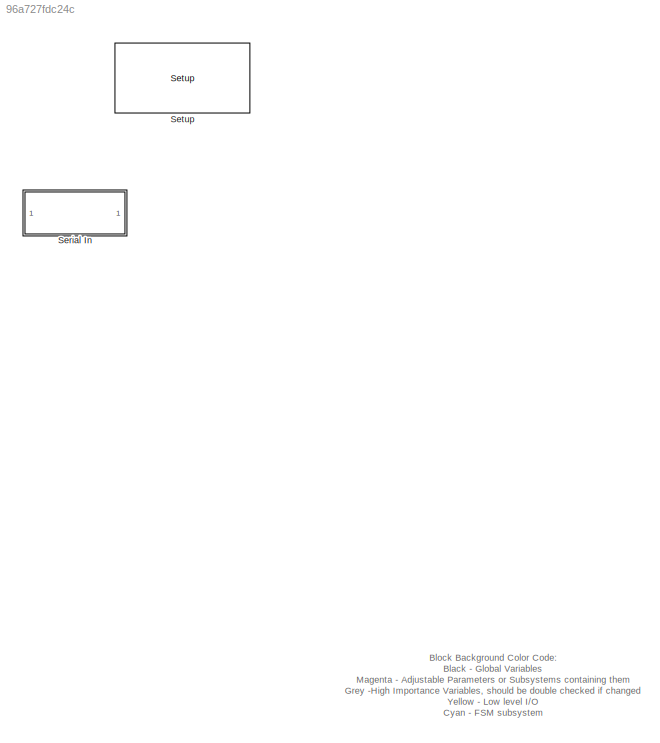
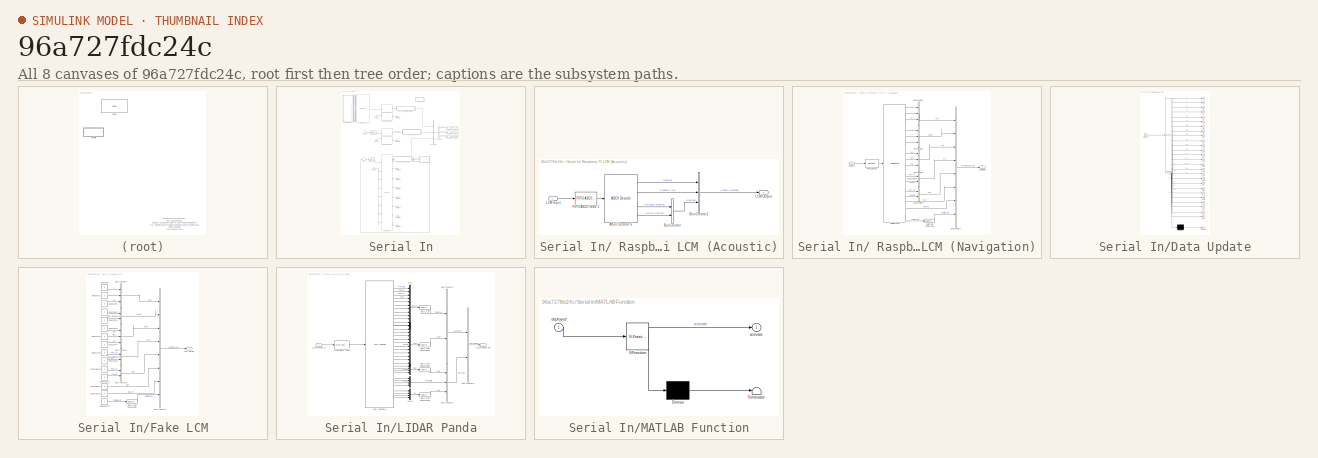
[diagram: thumbnail index - all 8 canvases of the model, root first then tree order]
MODEL slx_96a727fdc24c
KIND model
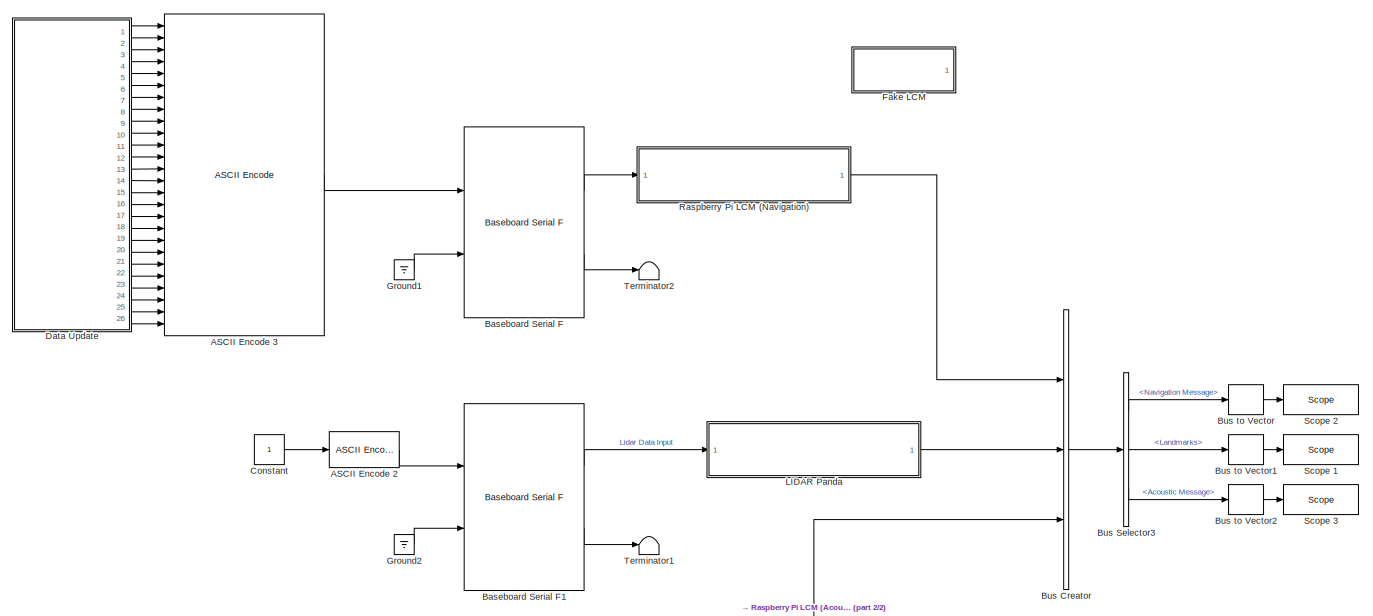
[diagram: Serial In - part 1/2, full width, top band]
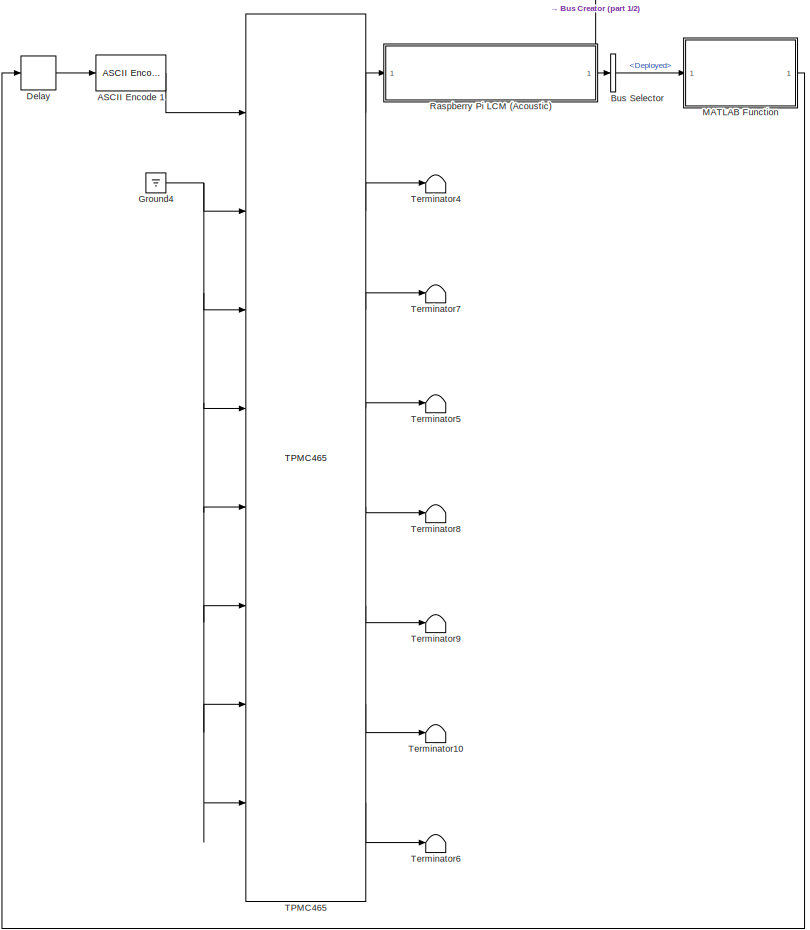
[diagram: Serial In - part 2/2, bottom center region]
BLOCK [SubSystem] Serial In
  Ports = []
  RequestExecContextInheritance = off
BLOCK [SubSystem] Serial In/ Raspberry Pi LCM (Acoustic)
  Ports = [1, 1]
  RequestExecContextInheritance = off
BLOCK [Reference] Serial In/ Raspberry Pi LCM (Acoustic)/ASCII Decode 6  REF=xpcseriallib/ASCII Decode 
  Ports = [1, 4]
  SourceBlock = xpcseriallib/ASCII Decode
  SourceType = ASCII Decode
  format = Deploy:%1u, Elapsed:%g, Bearing1:%g Bearing2:%g \r\n
  nvars = 4
  vartypes = {}
BLOCK [BusCreator] Serial In/ Raspberry Pi LCM (Acoustic)/Bus Creator
  DisplayOption = bar
  Inputs = 2
  Ports = [2, 1]
BLOCK [BusCreator] Serial In/ Raspberry Pi LCM (Acoustic)/Bus Creator1
  DisplayOption = bar
  Inputs = 3
  Ports = [3, 1]
BLOCK [Reference] Serial In/ Raspberry Pi LCM (Acoustic)/FIFO ASCII read 1  REF=xpcseriallib/FIFO ASCII read 
  Ports = [1, 1]
  SourceBlock = xpcseriallib/FIFO ASCII read
  SourceType = Asynchronous FIFO Block: reader
  enable = off
  header = {'Deploy:'}
  hold = Zero output if no new data
  maxsize = 1024
  outputtype = 8 bit uint null terminated
  sampletime = -1
  term = [13 10]
BLOCK [Inport] Serial In/ Raspberry Pi LCM (Acoustic)/LCM Input
  IconDisplay = Port number
BLOCK [Outport] Serial In/ Raspberry Pi LCM (Acoustic)/LCM Output
  IconDisplay = Port number
BLOCK [SubSystem] Serial In/ Raspberry Pi LCM (Navigation)
  Ports = [1, 1]
  RequestExecContextInheritance = off
BLOCK [Reference] Serial In/ Raspberry Pi LCM (Navigation)/ASCII Decode 6  REF=xpcseriallib/ASCII Decode 
  Ports = [1, 16]
  SourceBlock = xpcseriallib/ASCII Decode
  SourceType = ASCII Decode
  format = P1:%f P2:%f P3:%f V1:%f V2:%f V3:%f E1:%f E2:%f E3:%f Pt1:%f Pt2:%f St1:%f St2:%f Start:%f Elapsed:%f RC:%d \r\n
  nvars = 16
  vartypes = {}
BLOCK [BusCreator] Serial In/ Raspberry Pi LCM (Navigation)/Bus Creator1
  DisplayOption = bar
  Inputs = 3
  Ports = [3, 1]
BLOCK [BusCreator] Serial In/ Raspberry Pi LCM (Navigation)/Bus Creator2
  DisplayOption = bar
  Inputs = 3
  Ports = [3, 1]
BLOCK [BusCreator] Serial In/ Raspberry Pi LCM (Navigation)/Bus Creator3
  DisplayOption = bar
  Inputs = 3
  Ports = [3, 1]
BLOCK [BusCreator] Serial In/ Raspberry Pi LCM (Navigation)/Bus Creator4
  DisplayOption = bar
  Inputs = 8
  Ports = [8, 1]
BLOCK [BusCreator] Serial In/ Raspberry Pi LCM (Navigation)/Bus Creator5
  DisplayOption = bar
  Inputs = 2
  Ports = [2, 1]
BLOCK [BusCreator] Serial In/ Raspberry Pi LCM (Navigation)/Bus Creator6
  DisplayOption = bar
  Inputs = 2
  Ports = [2, 1]
BLOCK [DataTypeConversion] Serial In/ Raspberry Pi LCM (Navigation)/Data Type Conversion
  OutDataTypeStr = double
  RndMeth = Floor
  SaturateOnIntegerOverflow = off
BLOCK [Reference] Serial In/ Raspberry Pi LCM (Navigation)/FIFO ASCII read 1  REF=xpcseriallib/FIFO ASCII read 
  Ports = [1, 1]
  SourceBlock = xpcseriallib/FIFO ASCII read
  SourceType = Asynchronous FIFO Block: reader
  enable = off
  header = {'P1:'}
  hold = Zero output if no new data
  maxsize = 1024
  outputtype = 8 bit uint null terminated
  sampletime = -1
  term = [13 10]
BLOCK [Inport] Serial In/ Raspberry Pi LCM (Navigation)/LCM Input
  IconDisplay = Port number
BLOCK [Outport] Serial In/ Raspberry Pi LCM (Navigation)/LCM Output
  IconDisplay = Port number
BLOCK [Reference] Serial In/ASCII Encode 1  REF=xpcseriallib/ASCII Encode 
  Ports = [1, 1]
  SourceBlock = xpcseriallib/ASCII Encode
  SourceType = ASCII Encode
  format = {"Activate":%d} \r\n
  maxlength = 20
  nvars = 1
  vartypes = { 'double' }
BLOCK [Reference] Serial In/ASCII Encode 2  REF=xpcseriallib/ASCII Encode 
  Ports = [1, 1]
  SourceBlock = xpcseriallib/ASCII Encode
  SourceType = ASCII Encode
  format = SGTask:%d \r\n
  maxlength = 128
  nvars = 1
  vartypes = { 'double' }
BLOCK [Reference] Serial In/ASCII Encode 3  REF=xpcseriallib/ASCII Encode 
  Ports = [26, 1]
  SourceBlock = xpcseriallib/ASCII Encode
  SourceType = ASCII Encode
  format = {"Valid":%d,"Mode":%d,"A":%f,"B":%f,"C":%f,"D":%f,"E":%f,"F":%f,"G":%f,"H":%f,"I":%f,"J":%f,"K":%f,"L":%f,"M":%f,"N":%f,"O":%f,"P":%f,"Q":%f,"R":%f,"S":%f,"T":%f,"U":%f,"V":%f,"W":%f,"X":%f} \r\n
  maxlength = 450
  nvars = 26
  vartypes = { 'double' }
BLOCK [Reference] Serial In/Baseboard Serial F  REF=xpcseriallib/Mainboard/Baseboard
Serial F
  Ports = [2, 2]
  SourceBlock = xpcseriallib/Mainboard/Baseboard\nSerial F
  SourceType = Baseboard RS232 Send Receive
  automode1 = on
  automode2 = on
  baud1 = 115200
  baud2 = 115200
  config = Com1/Com3
  fifomode1 = 64 deep
  fifomode2 = 64 deep
  group = Basic Setup
  irqnum = 4
  ndata1 = 7
  ndata2 = 7
  nstop1 = 1
  nstop2 = 1
  parity1 = Even
  parity2 = Even
  port = 1
  rcvfifosize1 = 1024
  rcvfifosize2 = 1024
  rlevel1 = quarter full
  rlevel2 = 1
  saddr1 = 0x3f8
  saddr2 = 0x3e8
  xmtdatatype1 = 8 bit uint null terminated
  xmtdatatype2 = 8 bit uint null terminated
  xmtfifosize1 = 1024
  xmtfifosize2 = 1024
BLOCK [Reference] Serial In/Baseboard Serial F1  REF=xpcseriallib/Mainboard/Baseboard
Serial F
  Ports = [2, 2]
  SourceBlock = xpcseriallib/Mainboard/Baseboard\nSerial F
  SourceType = Baseboard RS232 Send Receive
  automode1 = on
  automode2 = on
  baud1 = 115200
  baud2 = 115200
  config = Com2/Com4
  fifomode1 = 64 deep
  fifomode2 = 64 deep
  group = Basic Setup
  irqnum = 4
  ndata1 = 7
  ndata2 = 7
  nstop1 = 1
  nstop2 = 1
  parity1 = Even
  parity2 = Even
  port = 2
  rcvfifosize1 = 1024
  rcvfifosize2 = 1024
  rlevel1 = quarter full
  rlevel2 = quarter full
  saddr1 = 0x3f8
  saddr2 = 0x3e8
  xmtdatatype1 = 8 bit uint null terminated
  xmtdatatype2 = 8 bit uint null terminated
  xmtfifosize1 = 1024
  xmtfifosize2 = 1024
BLOCK [BusCreator] Serial In/Bus Creator
  DisplayOption = bar
  Inputs = 3
  Ports = [3, 1]
BLOCK [BusSelector] Serial In/Bus Selector
  OutputSignals = Deployed
  Ports = [1, 1]
BLOCK [BusSelector] Serial In/Bus Selector3
  OutputSignals = Navigation Message,Lidar Data Input.Landmarks,Acoustic Message
  Ports = [1, 3]
BLOCK [BusToVector] Serial In/Bus to Vector
BLOCK [BusToVector] Serial In/Bus to Vector1
BLOCK [BusToVector] Serial In/Bus to Vector2
BLOCK [Constant] Serial In/Constant
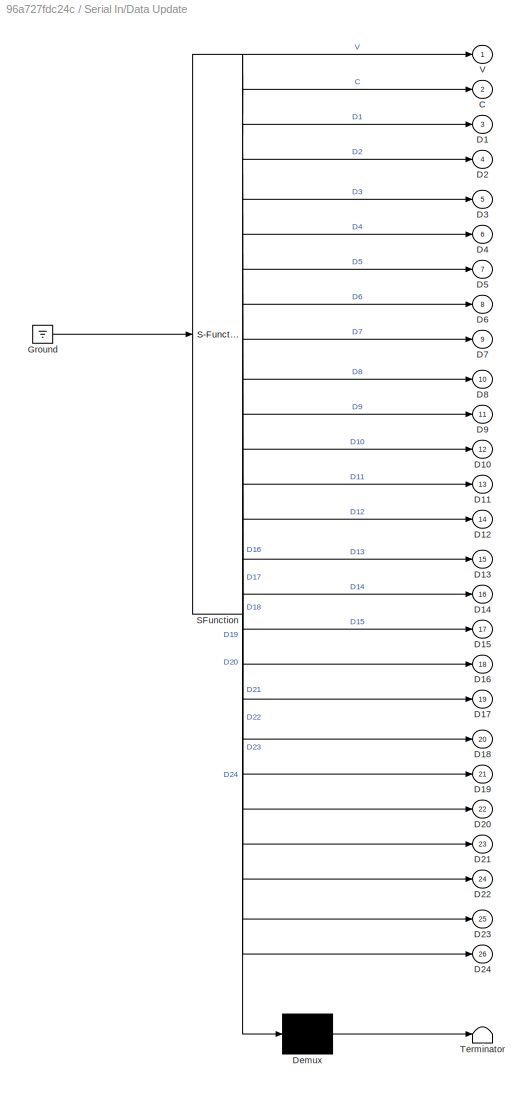
BLOCK [SubSystem] Serial In/Data Update
  ErrorFcn = Stateflow.Translate.translate
  PermitHierarchicalResolution = ExplicitOnly
  Ports = [0, 26]
  RequestExecContextInheritance = off
  SFBlockType = MATLAB Function
  TreatAsAtomicUnit = on
BLOCK [Demux] Serial In/Data Update/ Demux 
  Outputs = 1
  Ports = [1, 1]
BLOCK [Ground] Serial In/Data Update/ Ground 
BLOCK [S-Function] Serial In/Data Update/ SFunction 
  EnableBusSupport = on
  FunctionName = sf_sfun
  PortCounts = [1 27]
  Ports = [1, 27]
  Tag = Stateflow S-Function RobotX_AcousticCommOnlyAllThree 3
BLOCK [Terminator] Serial In/Data Update/ Terminator 
BLOCK [Outport] Serial In/Data Update/C
  IconDisplay = Port number
  Port = 2
BLOCK [Outport] Serial In/Data Update/D1
  IconDisplay = Port number
  Port = 3
BLOCK [Outport] Serial In/Data Update/D10
  IconDisplay = Port number
  Port = 12
BLOCK [Outport] Serial In/Data Update/D11
  IconDisplay = Port number
  Port = 13
BLOCK [Outport] Serial In/Data Update/D12
  IconDisplay = Port number
  Port = 14
BLOCK [Outport] Serial In/Data Update/D13
  IconDisplay = Port number
  Port = 15
BLOCK [Outport] Serial In/Data Update/D14
  IconDisplay = Port number
  Port = 16
BLOCK [Outport] Serial In/Data Update/D15
  IconDisplay = Port number
  Port = 17
BLOCK [Outport] Serial In/Data Update/D16
  IconDisplay = Port number
  Port = 18
BLOCK [Outport] Serial In/Data Update/D17
  IconDisplay = Port number
  Port = 19
BLOCK [Outport] Serial In/Data Update/D18
  IconDisplay = Port number
  Port = 20
BLOCK [Outport] Serial In/Data Update/D19
  IconDisplay = Port number
  Port = 21
BLOCK [Outport] Serial In/Data Update/D2
  IconDisplay = Port number
  Port = 4
BLOCK [Outport] Serial In/Data Update/D20
  IconDisplay = Port number
  Port = 22
BLOCK [Outport] Serial In/Data Update/D21
  IconDisplay = Port number
  Port = 23
BLOCK [Outport] Serial In/Data Update/D22
  IconDisplay = Port number
  Port = 24
BLOCK [Outport] Serial In/Data Update/D23
  IconDisplay = Port number
  Port = 25
BLOCK [Outport] Serial In/Data Update/D24
  IconDisplay = Port number
  Port = 26
BLOCK [Outport] Serial In/Data Update/D3
  IconDisplay = Port number
  Port = 5
BLOCK [Outport] Serial In/Data Update/D4
  IconDisplay = Port number
  Port = 6
BLOCK [Outport] Serial In/Data Update/D5
  IconDisplay = Port number
  Port = 7
BLOCK [Outport] Serial In/Data Update/D6
  IconDisplay = Port number
  Port = 8
BLOCK [Outport] Serial In/Data Update/D7
  IconDisplay = Port number
  Port = 9
BLOCK [Outport] Serial In/Data Update/D8
  IconDisplay = Port number
  Port = 10
BLOCK [Outport] Serial In/Data Update/D9
  IconDisplay = Port number
  Port = 11
BLOCK [Outport] Serial In/Data Update/V
  IconDisplay = Port number
BLOCK [Delay] Serial In/Delay
  DelayLength = 1
  InitialCondition = 0
  InputPortMap = u0
  Ports = [1, 1]
BLOCK [SubSystem] Serial In/Fake LCM
  Commented = on
  Ports = [0, 1]
  RequestExecContextInheritance = off
BLOCK [BusCreator] Serial In/Fake LCM/Bus Creator1
  DisplayOption = bar
  Inputs = 3
  Ports = [3, 1]
BLOCK [BusCreator] Serial In/Fake LCM/Bus Creator2
  DisplayOption = bar
  Inputs = 2
  Ports = [2, 1]
BLOCK [BusCreator] Serial In/Fake LCM/Bus Creator3
  DisplayOption = bar
  Inputs = 3
  Ports = [3, 1]
BLOCK [BusCreator] Serial In/Fake LCM/Bus Creator4
  DisplayOption = bar
  Inputs = 8
  Ports = [8, 1]
BLOCK [BusCreator] Serial In/Fake LCM/Bus Creator5
  DisplayOption = bar
  Inputs = 2
  Ports = [2, 1]
BLOCK [BusCreator] Serial In/Fake LCM/Bus Creator6
  DisplayOption = bar
  Inputs = 2
  Ports = [2, 1]
BLOCK [Constant] Serial In/Fake LCM/Constant
  Value = 0
BLOCK [Constant] Serial In/Fake LCM/Constant1
  Value = 0
BLOCK [Constant] Serial In/Fake LCM/Constant10
  Value = 0
BLOCK [Constant] Serial In/Fake LCM/Constant11
  Value = 0
BLOCK [Constant] Serial In/Fake LCM/Constant12
  Value = 0
BLOCK [Constant] Serial In/Fake LCM/Constant13
  Value = 0
BLOCK [Constant] Serial In/Fake LCM/Constant14
  Value = 3
BLOCK [Constant] Serial In/Fake LCM/Constant2
  Value = 0
BLOCK [Constant] Serial In/Fake LCM/Constant3
  Value = 0
BLOCK [Constant] Serial In/Fake LCM/Constant4
  Value = 0
BLOCK [Constant] Serial In/Fake LCM/Constant5
  Value = 0
BLOCK [Constant] Serial In/Fake LCM/Constant6
  Value = 0
BLOCK [Constant] Serial In/Fake LCM/Constant7
  Value = 0
BLOCK [Constant] Serial In/Fake LCM/Constant8
  Value = 0
BLOCK [Constant] Serial In/Fake LCM/Constant9
  Value = 0
BLOCK [DataTypeConversion] Serial In/Fake LCM/Data Type Conversion
  OutDataTypeStr = double
  RndMeth = Floor
  SaturateOnIntegerOverflow = off
BLOCK [Outport] Serial In/Fake LCM/LCM Output
  IconDisplay = Port number
BLOCK [Ground] Serial In/Ground1
BLOCK [Ground] Serial In/Ground2
BLOCK [Ground] Serial In/Ground4
BLOCK [SubSystem] Serial In/LIDAR Panda
  Ports = [1, 1]
  RequestExecContextInheritance = off
BLOCK [Reference] Serial In/LIDAR Panda/ASCII Decode 2  REF=xpcseriallib/ASCII Decode 
  Ports = [1, 36]
  SourceBlock = xpcseriallib/ASCII Decode
  SourceType = ASCII Decode
  format = A:%d B:%d C:%d E:%d F:%d G:%d H:%d I:%d J:%d K:%d L:%d M:%d N:%d O:%d P:%d Q:%d R:%d S:%d T:%d U:%d V:%d W:%d X:%d C1:%d C2:%d C3:%d C4:%d P1:%f P2:%f P3:%f P4:%f I1:%d I2:%d I3:%d I4:%d \r\n
  nvars = 36
  vartypes = {}
BLOCK [BusCreator] Serial In/LIDAR Panda/Bus Creator1
  DisplayOption = bar
  Inputs = 2
  Ports = [2, 1]
BLOCK [BusCreator] Serial In/LIDAR Panda/Bus Creator2
  DisplayOption = bar
  Inputs = 3
  Ports = [3, 1]
BLOCK [BusCreator] Serial In/LIDAR Panda/Bus Creator3
  DisplayOption = bar
  Inputs = 2
  Ports = [2, 1]
BLOCK [DataTypeConversion] Serial In/LIDAR Panda/Data Type Conversion
  OutDataTypeStr = double
  RndMeth = Floor
  SaturateOnIntegerOverflow = off
BLOCK [DataTypeConversion] Serial In/LIDAR Panda/Data Type Conversion1
  OutDataTypeStr = double
  RndMeth = Floor
  SaturateOnIntegerOverflow = off
BLOCK [DataTypeConversion] Serial In/LIDAR Panda/Data Type Conversion2
  OutDataTypeStr = double
  RndMeth = Floor
  SaturateOnIntegerOverflow = off
BLOCK [DataTypeConversion] Serial In/LIDAR Panda/Data Type Conversion3
  OutDataTypeStr = double
  RndMeth = Floor
  SaturateOnIntegerOverflow = off
BLOCK [Reference] Serial In/LIDAR Panda/FIFO ASCII read   REF=xpcseriallib/FIFO ASCII read 
  Ports = [1, 1]
  SourceBlock = xpcseriallib/FIFO ASCII read
  SourceType = Asynchronous FIFO Block: reader
  enable = off
  header = {'A:'}
  hold = Zero output if no new data
  maxsize = 1024
  outputtype = 8 bit uint null terminated
  sampletime = -1
  term = [13 10]
BLOCK [Inport] Serial In/LIDAR Panda/LIDAR Panda In
  IconDisplay = Port number
BLOCK [Outport] Serial In/LIDAR Panda/LIDAR Panda Out
  IconDisplay = Port number
BLOCK [Mux] Serial In/LIDAR Panda/Mux
  DisplayOption = bar
  Inputs = 12
  Ports = [12, 1]
BLOCK [Mux] Serial In/LIDAR Panda/Mux1
  DisplayOption = bar
  Ports = [4, 1]
BLOCK [Mux] Serial In/LIDAR Panda/Mux2
  DisplayOption = bar
  Inputs = 12
  Ports = [12, 1]
BLOCK [Mux] Serial In/LIDAR Panda/Mux3
  DisplayOption = bar
  Ports = [4, 1]
BLOCK [Mux] Serial In/LIDAR Panda/Mux4
  DisplayOption = bar
  Ports = [4, 1]
BLOCK [SubSystem] Serial In/MATLAB Function
  ErrorFcn = Stateflow.Translate.translate
  PermitHierarchicalResolution = ExplicitOnly
  Ports = [1, 1]
  RequestExecContextInheritance = off
  SFBlockType = MATLAB Function
  TreatAsAtomicUnit = on
BLOCK [Demux] Serial In/MATLAB Function/ Demux 
  Outputs = 1
  Ports = [1, 1]
BLOCK [S-Function] Serial In/MATLAB Function/ SFunction 
  EnableBusSupport = on
  FunctionName = sf_sfun
  PortCounts = [1 2]
  Ports = [1, 2]
  Tag = Stateflow S-Function RobotX_AcousticCommOnlyAllThree 2
BLOCK [Terminator] Serial In/MATLAB Function/ Terminator 
BLOCK [Outport] Serial In/MATLAB Function/activate
  IconDisplay = Port number
BLOCK [Inport] Serial In/MATLAB Function/deployed
  IconDisplay = Port number
BLOCK [Reference] Serial In/Scope 1  REF=slrtlib/Displays and
Logging/Scope 
  Ports = [1]
  SourceBlock = slrtlib/Displays and\nLogging/Scope
  SourceType = xpcscopeblock
  autorestart = on
  autostart = on
  dynamicfilemode = on
  filename = LM1_<%%%>2.dat
  formatstr = '%15.6f'
  grid = on
  interleave = 1
  maxwritefilesize = 512*1024^2
  mode = Lazy
  noprepostsamples = 0
  nosamples = 28800
  scopeno = 4
  scopetype = File
  triggerlevel = 0.0
  triggermode = FreeRun
  triggersample = 0
  triggerscope = 1
  triggersignal = 1
  triggerslope = Either
  trigsignalfromport = off
  viewmode = Graphical redraw
  writesize = 512
  ylimits = [0,0]
BLOCK [Reference] Serial In/Scope 2  REF=slrtlib/Displays and
Logging/Scope 
  Ports = [1]
  SourceBlock = slrtlib/Displays and\nLogging/Scope
  SourceType = xpcscopeblock
  autorestart = on
  autostart = on
  dynamicfilemode = on
  filename = NAV1_<%%%>2.dat
  formatstr = '%15.6f'
  grid = on
  interleave = 1
  maxwritefilesize = 512*1024^2
  mode = Lazy
  noprepostsamples = 0
  nosamples = 28800
  scopeno = 1
  scopetype = File
  triggerlevel = 0.0
  triggermode = FreeRun
  triggersample = 0
  triggerscope = 1
  triggersignal = 1
  triggerslope = Either
  trigsignalfromport = off
  viewmode = Graphical redraw
  writesize = 512
  ylimits = [0,0]
BLOCK [Reference] Serial In/Scope 3  REF=slrtlib/Displays and
Logging/Scope 
  Ports = [1]
  SourceBlock = slrtlib/Displays and\nLogging/Scope
  SourceType = xpcscopeblock
  autorestart = on
  autostart = on
  dynamicfilemode = on
  filename = ACO1_<%%%>2.dat
  formatstr = '%15.6f'
  grid = on
  interleave = 1
  maxwritefilesize = 512*1024^2
  mode = Lazy
  noprepostsamples = 0
  nosamples = 28800
  scopeno = 3
  scopetype = File
  triggerlevel = 0.0
  triggermode = FreeRun
  triggersample = 0
  triggerscope = 1
  triggersignal = 1
  triggerslope = Either
  trigsignalfromport = off
  viewmode = Graphical redraw
  writesize = 512
  ylimits = [0,0]
BLOCK [Reference] Serial In/TPMC465  REF=speedgoatlib/IO504/TPMC465  (lib defined in mdl_2b10c7445f81, mdl_649b3eec89a6, +4 more)
  Ports = [8, 8]
  SourceBlock = speedgoatlib/IO504/TPMC465
  SourceType = sendreceive_IO504
  baud1 = 115200
  baud2 = 115200
  baud3 = 115200
  baud4 = 115200
  baud5 = 115200
  baud6 = 115200
  baud7 = 115200
  baud8 = 115200
  bauddivisor1 = 1
  bauddivisor2 = 1
  bauddivisor3 = 1
  bauddivisor4 = 1
  bauddivisor5 = 1
  bauddivisor6 = 1
  bauddivisor7 = 1
  bauddivisor8 = 1
  group = Basic Setup
  hwmode1 = none
  hwmode2 = none
  hwmode3 = none
  hwmode4 = none
  hwmode5 = none
  hwmode6 = none
  hwmode7 = none
  hwmode8 = none
  irqnum = 9
  ndata1 = 7
  ndata2 = 8
  ndata3 = 8
  ndata4 = 8
  ndata5 = 8
  ndata6 = 8
  ndata7 = 8
  ndata8 = 8
  nstop1 = 1
  nstop2 = 1
  nstop3 = 1
  nstop4 = 1
  nstop5 = 1
  nstop6 = 1
  nstop7 = 1
  nstop8 = 1
  parity1 = Even
  parity2 = None
  parity3 = None
  parity4 = None
  parity5 = None
  parity6 = None
  parity7 = None
  parity8 = None
  port = 2
  prescale1 = off
  prescale2 = off
  prescale3 = off
  prescale4 = off
  prescale5 = off
  prescale6 = off
  prescale7 = off
  prescale8 = off
  rcvfifosize1 = 1024
  rcvfifosize2 = 1024
  rcvfifosize3 = 1024
  rcvfifosize4 = 1024
  rcvfifosize5 = 1024
  rcvfifosize6 = 1024
  rcvfifosize7 = 1024
  rcvfifosize8 = 1024
  rlevel1 = half full (32)
  rlevel2 = half full (32)
  rlevel3 = half full (32)
  rlevel4 = half full (32)
  rlevel5 = 1
  rlevel6 = 1
  rlevel7 = 1
  rlevel8 = 1
  rs485auto1 = off
  rs485auto2 = off
  rs485auto3 = off
  rs485auto4 = off
  rs485auto5 = off
  rs485auto6 = off
  rs485auto7 = off
  rs485auto8 = off
  rs485delay1 = 0
  rs485delay2 = 0
  rs485delay3 = 0
  rs485delay4 = 0
  rs485delay5 = 0
  rs485delay6 = 0
  rs485delay7 = 0
  rs485delay8 = 0
  sampling1 = 16x (standard)
  sampling2 = 16x (standard)
  sampling3 = 16x (standard)
  sampling4 = 16x (standard)
  sampling5 = 16x (standard)
  sampling6 = 16x (standard)
  sampling7 = 16x (standard)
  sampling8 = 16x (standard)
  slot = -1
  standard1 = on
  standard2 = on
  standard3 = on
  standard4 = on
  standard5 = on
  standard6 = on
  standard7 = on
  standard8 = on
  swmode1 = none
  swmode2 = none
  swmode3 = none
  swmode4 = none
  swmode5 = none
  swmode6 = none
  swmode7 = none
  swmode8 = none
  transceiver1 = RS232 (max 921.6kb/s)
  transceiver2 = RS232 (max 921.6kb/s)
  transceiver3 = RS232 (max 921.6kb/s)
  transceiver4 = RS232 (max 921.6kb/s)
  transceiver5 = RS232 (max 921.6kb/s)
  transceiver6 = RS232 (max 921.6kb/s)
  transceiver7 = RS232 (max 921.6kb/s)
  transceiver8 = RS232 (max 921.6kb/s)
  xmtdatatype1 = 8 bit uint null terminated
  xmtdatatype2 = 8 bit uint null terminated
  xmtdatatype3 = 8 bit uint null terminated
  xmtdatatype4 = 8 bit uint null terminated
  xmtdatatype5 = 8 bit uint null terminated
  xmtdatatype6 = 8 bit uint null terminated
  xmtdatatype7 = 8 bit uint null terminated
  xmtdatatype8 = 8 bit uint null terminated
  xmtfifosize1 = 1024
  xmtfifosize2 = 1024
  xmtfifosize3 = 1024
  xmtfifosize4 = 1024
  xmtfifosize5 = 1024
  xmtfifosize6 = 1024
  xmtfifosize7 = 1024
  xmtfifosize8 = 1024
  xoffchar1 = 19
  xoffchar2 = 19
  xoffchar3 = 19
  xoffchar4 = 19
  xoffchar5 = 19
  xoffchar6 = 19
  xoffchar7 = 19
  xoffchar8 = 19
  xonchar1 = 17
  xonchar2 = 17
  xonchar3 = 17
  xonchar4 = 17
  xonchar5 = 17
  xonchar6 = 17
  xonchar7 = 17
  xonchar8 = 17
BLOCK [Terminator] Serial In/Terminator1
BLOCK [Terminator] Serial In/Terminator10
BLOCK [Terminator] Serial In/Terminator2
BLOCK [Terminator] Serial In/Terminator4
BLOCK [Terminator] Serial In/Terminator5
BLOCK [Terminator] Serial In/Terminator6
BLOCK [Terminator] Serial In/Terminator7
BLOCK [Terminator] Serial In/Terminator8
BLOCK [Terminator] Serial In/Terminator9
BLOCK [Reference] Setup  REF=speedgoatlib_IO102/Setup
  Ports = []
  SourceBlock = speedgoatlib_IO102/Setup
  SourceType = setup_IO102
  adChannel = 16
  adChannelMode = Multiple-channel (enter number of channels below)
  adCoupling = Differential
  cal = off
  daChannel = [1,2,3,4]
  daInitValue = [0]
  daReset = [1]
  diChannel = [1,2,3,4,5,6,7,8]
  doChannel = [1,2,3,4,5,6,7,8]
  doInitValue = [0]
  doReset = [1]
  group = Digital output setup
  id = 1
  pciSlot = -1
  range = +-5V
ANNOTATION (root): Block Background Color Code: Black - Global Variables Magenta - Adjustable Parameters or Subsystems containing them Grey -High Importance Variables, should be double checked if changed Yellow - Low level I/O Cyan - FSM subsystem Light Blue - Conditional Selector Block Dark Green - Task Enablers Orange - Output Selectors Green - Signal Bussing Blocks Red - Logic blocks. Determine signals for output...<+28ch>
LINE Serial In/ Raspberry Pi LCM (Acoustic)/ASCII Decode 6:1 -> Serial In/ Raspberry Pi LCM (Acoustic)/Bus Creator1:1
LINE Serial In/ Raspberry Pi LCM (Acoustic)/ASCII Decode 6:2 -> Serial In/ Raspberry Pi LCM (Acoustic)/Bus Creator1:2
LINE Serial In/ Raspberry Pi LCM (Acoustic)/ASCII Decode 6:3 -> Serial In/ Raspberry Pi LCM (Acoustic)/Bus Creator:1
LINE Serial In/ Raspberry Pi LCM (Acoustic)/ASCII Decode 6:4 -> Serial In/ Raspberry Pi LCM (Acoustic)/Bus Creator:2
LINE Serial In/ Raspberry Pi LCM (Acoustic)/Bus Creator1:1 -> Serial In/ Raspberry Pi LCM (Acoustic)/LCM Output:1
LINE Serial In/ Raspberry Pi LCM (Acoustic)/Bus Creator:1 -> Serial In/ Raspberry Pi LCM (Acoustic)/Bus Creator1:3
LINE Serial In/ Raspberry Pi LCM (Acoustic)/FIFO ASCII read 1:1 -> Serial In/ Raspberry Pi LCM (Acoustic)/ASCII Decode 6:1
LINE Serial In/ Raspberry Pi LCM (Acoustic)/LCM Input:1 -> Serial In/ Raspberry Pi LCM (Acoustic)/FIFO ASCII read 1:1
NET Serial In/ Raspberry Pi LCM (Acoustic):1 -> Serial In/Bus Creator:3, Serial In/Bus Selector:1
LINE Serial In/ Raspberry Pi LCM (Navigation)/ASCII Decode 6:1 -> Serial In/ Raspberry Pi LCM (Navigation)/Bus Creator1:1
LINE Serial In/ Raspberry Pi LCM (Navigation)/ASCII Decode 6:10 -> Serial In/ Raspberry Pi LCM (Navigation)/Bus Creator5:1
LINE Serial In/ Raspberry Pi LCM (Navigation)/ASCII Decode 6:11 -> Serial In/ Raspberry Pi LCM (Navigation)/Bus Creator5:2
LINE Serial In/ Raspberry Pi LCM (Navigation)/ASCII Decode 6:12 -> Serial In/ Raspberry Pi LCM (Navigation)/Bus Creator6:1
LINE Serial In/ Raspberry Pi LCM (Navigation)/ASCII Decode 6:13 -> Serial In/ Raspberry Pi LCM (Navigation)/Bus Creator6:2
LINE Serial In/ Raspberry Pi LCM (Navigation)/ASCII Decode 6:14 -> Serial In/ Raspberry Pi LCM (Navigation)/Bus Creator4:6
LINE Serial In/ Raspberry Pi LCM (Navigation)/ASCII Decode 6:15 -> Serial In/ Raspberry Pi LCM (Navigation)/Bus Creator4:7
LINE Serial In/ Raspberry Pi LCM (Navigation)/ASCII Decode 6:16 -> Serial In/ Raspberry Pi LCM (Navigation)/Data Type Conversion:1
LINE Serial In/ Raspberry Pi LCM (Navigation)/ASCII Decode 6:2 -> Serial In/ Raspberry Pi LCM (Navigation)/Bus Creator1:2
LINE Serial In/ Raspberry Pi LCM (Navigation)/ASCII Decode 6:3 -> Serial In/ Raspberry Pi LCM (Navigation)/Bus Creator1:3
LINE Serial In/ Raspberry Pi LCM (Navigation)/ASCII Decode 6:4 -> Serial In/ Raspberry Pi LCM (Navigation)/Bus Creator2:1
LINE Serial In/ Raspberry Pi LCM (Navigation)/ASCII Decode 6:5 -> Serial In/ Raspberry Pi LCM (Navigation)/Bus Creator2:2
LINE Serial In/ Raspberry Pi LCM (Navigation)/ASCII Decode 6:6 -> Serial In/ Raspberry Pi LCM (Navigation)/Bus Creator2:3
LINE Serial In/ Raspberry Pi LCM (Navigation)/ASCII Decode 6:7 -> Serial In/ Raspberry Pi LCM (Navigation)/Bus Creator3:1
LINE Serial In/ Raspberry Pi LCM (Navigation)/ASCII Decode 6:8 -> Serial In/ Raspberry Pi LCM (Navigation)/Bus Creator3:2
LINE Serial In/ Raspberry Pi LCM (Navigation)/ASCII Decode 6:9 -> Serial In/ Raspberry Pi LCM (Navigation)/Bus Creator3:3
LINE Serial In/ Raspberry Pi LCM (Navigation)/Bus Creator1:1 -> Serial In/ Raspberry Pi LCM (Navigation)/Bus Creator4:1
LINE Serial In/ Raspberry Pi LCM (Navigation)/Bus Creator2:1 -> Serial In/ Raspberry Pi LCM (Navigation)/Bus Creator4:2
LINE Serial In/ Raspberry Pi LCM (Navigation)/Bus Creator3:1 -> Serial In/ Raspberry Pi LCM (Navigation)/Bus Creator4:3
LINE Serial In/ Raspberry Pi LCM (Navigation)/Bus Creator4:1 -> Serial In/ Raspberry Pi LCM (Navigation)/LCM Output:1
LINE Serial In/ Raspberry Pi LCM (Navigation)/Bus Creator5:1 -> Serial In/ Raspberry Pi LCM (Navigation)/Bus Creator4:4
LINE Serial In/ Raspberry Pi LCM (Navigation)/Bus Creator6:1 -> Serial In/ Raspberry Pi LCM (Navigation)/Bus Creator4:5
LINE Serial In/ Raspberry Pi LCM (Navigation)/Data Type Conversion:1 -> Serial In/ Raspberry Pi LCM (Navigation)/Bus Creator4:8
LINE Serial In/ Raspberry Pi LCM (Navigation)/FIFO ASCII read 1:1 -> Serial In/ Raspberry Pi LCM (Navigation)/ASCII Decode 6:1
LINE Serial In/ Raspberry Pi LCM (Navigation)/LCM Input:1 -> Serial In/ Raspberry Pi LCM (Navigation)/FIFO ASCII read 1:1
LINE Serial In/ Raspberry Pi LCM (Navigation):1 -> Serial In/Bus Creator:1
LINE Serial In/ASCII Encode 1:1 -> Serial In/TPMC465:1
LINE Serial In/ASCII Encode 2:1 -> Serial In/Baseboard Serial F1:1
LINE Serial In/ASCII Encode 3:1 -> Serial In/Baseboard Serial F:1
LINE Serial In/Baseboard Serial F1:1 -> Serial In/LIDAR Panda:1
LINE Serial In/Baseboard Serial F1:2 -> Serial In/Terminator1:1
LINE Serial In/Baseboard Serial F:1 -> Serial In/ Raspberry Pi LCM (Navigation):1
LINE Serial In/Baseboard Serial F:2 -> Serial In/Terminator2:1
LINE Serial In/Bus Creator:1 -> Serial In/Bus Selector3:1
LINE Serial In/Bus Selector3:1 -> Serial In/Bus to Vector:1
LINE Serial In/Bus Selector3:2 -> Serial In/Bus to Vector1:1
LINE Serial In/Bus Selector3:3 -> Serial In/Bus to Vector2:1
LINE Serial In/Bus Selector:1 -> Serial In/MATLAB Function:1
LINE Serial In/Bus to Vector1:1 -> Serial In/Scope 1:1
LINE Serial In/Bus to Vector2:1 -> Serial In/Scope 3:1
LINE Serial In/Bus to Vector:1 -> Serial In/Scope 2:1
LINE Serial In/Constant:1 -> Serial In/ASCII Encode 2:1
LINE Serial In/Data Update:1 -> Serial In/ASCII Encode 3:1
LINE Serial In/Data Update:10 -> Serial In/ASCII Encode 3:10
LINE Serial In/Data Update:11 -> Serial In/ASCII Encode 3:11
LINE Serial In/Data Update:12 -> Serial In/ASCII Encode 3:12
LINE Serial In/Data Update:13 -> Serial In/ASCII Encode 3:13
LINE Serial In/Data Update:14 -> Serial In/ASCII Encode 3:14
LINE Serial In/Data Update:15 -> Serial In/ASCII Encode 3:15
LINE Serial In/Data Update:16 -> Serial In/ASCII Encode 3:16
LINE Serial In/Data Update:17 -> Serial In/ASCII Encode 3:17
LINE Serial In/Data Update:18 -> Serial In/ASCII Encode 3:18
LINE Serial In/Data Update:19 -> Serial In/ASCII Encode 3:19
LINE Serial In/Data Update:2 -> Serial In/ASCII Encode 3:2
LINE Serial In/Data Update:20 -> Serial In/ASCII Encode 3:20
LINE Serial In/Data Update:21 -> Serial In/ASCII Encode 3:21
LINE Serial In/Data Update:22 -> Serial In/ASCII Encode 3:22
LINE Serial In/Data Update:23 -> Serial In/ASCII Encode 3:23
LINE Serial In/Data Update:24 -> Serial In/ASCII Encode 3:24
LINE Serial In/Data Update:25 -> Serial In/ASCII Encode 3:25
LINE Serial In/Data Update:26 -> Serial In/ASCII Encode 3:26
LINE Serial In/Data Update:3 -> Serial In/ASCII Encode 3:3
LINE Serial In/Data Update:4 -> Serial In/ASCII Encode 3:4
LINE Serial In/Data Update:5 -> Serial In/ASCII Encode 3:5
LINE Serial In/Data Update:6 -> Serial In/ASCII Encode 3:6
LINE Serial In/Data Update:7 -> Serial In/ASCII Encode 3:7
LINE Serial In/Data Update:8 -> Serial In/ASCII Encode 3:8
LINE Serial In/Data Update:9 -> Serial In/ASCII Encode 3:9
LINE Serial In/Delay:1 -> Serial In/ASCII Encode 1:1
LINE Serial In/Fake LCM/Bus Creator1:1 -> Serial In/Fake LCM/Bus Creator4:1
LINE Serial In/Fake LCM/Bus Creator2:1 -> Serial In/Fake LCM/Bus Creator4:2
LINE Serial In/Fake LCM/Bus Creator3:1 -> Serial In/Fake LCM/Bus Creator4:3
LINE Serial In/Fake LCM/Bus Creator4:1 -> Serial In/Fake LCM/LCM Output:1
LINE Serial In/Fake LCM/Bus Creator5:1 -> Serial In/Fake LCM/Bus Creator4:4
LINE Serial In/Fake LCM/Bus Creator6:1 -> Serial In/Fake LCM/Bus Creator4:5
LINE Serial In/Fake LCM/Constant10:1 -> Serial In/Fake LCM/Bus Creator6:1
LINE Serial In/Fake LCM/Constant11:1 -> Serial In/Fake LCM/Bus Creator6:2
LINE Serial In/Fake LCM/Constant12:1 -> Serial In/Fake LCM/Bus Creator4:6
LINE Serial In/Fake LCM/Constant13:1 -> Serial In/Fake LCM/Bus Creator4:7
LINE Serial In/Fake LCM/Constant14:1 -> Serial In/Fake LCM/Data Type Conversion:1
LINE Serial In/Fake LCM/Constant1:1 -> Serial In/Fake LCM/Bus Creator1:2
LINE Serial In/Fake LCM/Constant2:1 -> Serial In/Fake LCM/Bus Creator1:3
LINE Serial In/Fake LCM/Constant3:1 -> Serial In/Fake LCM/Bus Creator2:1
LINE Serial In/Fake LCM/Constant4:1 -> Serial In/Fake LCM/Bus Creator2:2
LINE Serial In/Fake LCM/Constant5:1 -> Serial In/Fake LCM/Bus Creator3:1
LINE Serial In/Fake LCM/Constant6:1 -> Serial In/Fake LCM/Bus Creator3:2
LINE Serial In/Fake LCM/Constant7:1 -> Serial In/Fake LCM/Bus Creator3:3
LINE Serial In/Fake LCM/Constant8:1 -> Serial In/Fake LCM/Bus Creator5:1
LINE Serial In/Fake LCM/Constant9:1 -> Serial In/Fake LCM/Bus Creator5:2
LINE Serial In/Fake LCM/Constant:1 -> Serial In/Fake LCM/Bus Creator1:1
LINE Serial In/Fake LCM/Data Type Conversion:1 -> Serial In/Fake LCM/Bus Creator4:8
LINE Serial In/Ground1:1 -> Serial In/Baseboard Serial F:2
LINE Serial In/Ground2:1 -> Serial In/Baseboard Serial F1:2
NET Serial In/Ground4:1 -> Serial In/TPMC465:2, Serial In/TPMC465:3, Serial In/TPMC465:4, Serial In/TPMC465:5, Serial In/TPMC465:6, Serial In/TPMC465:7, Serial In/TPMC465:8
LINE Serial In/LIDAR Panda/ASCII Decode 2:1 -> Serial In/LIDAR Panda/Mux:1
LINE Serial In/LIDAR Panda/ASCII Decode 2:10 -> Serial In/LIDAR Panda/Mux:10
LINE Serial In/LIDAR Panda/ASCII Decode 2:11 -> Serial In/LIDAR Panda/Mux:11
LINE Serial In/LIDAR Panda/ASCII Decode 2:12 -> Serial In/LIDAR Panda/Mux:12
LINE Serial In/LIDAR Panda/ASCII Decode 2:13 -> Serial In/LIDAR Panda/Mux2:1
LINE Serial In/LIDAR Panda/ASCII Decode 2:14 -> Serial In/LIDAR Panda/Mux2:2
LINE Serial In/LIDAR Panda/ASCII Decode 2:15 -> Serial In/LIDAR Panda/Mux2:3
LINE Serial In/LIDAR Panda/ASCII Decode 2:16 -> Serial In/LIDAR Panda/Mux2:4
LINE Serial In/LIDAR Panda/ASCII Decode 2:17 -> Serial In/LIDAR Panda/Mux2:5
LINE Serial In/LIDAR Panda/ASCII Decode 2:18 -> Serial In/LIDAR Panda/Mux2:6
LINE Serial In/LIDAR Panda/ASCII Decode 2:19 -> Serial In/LIDAR Panda/Mux2:7
LINE Serial In/LIDAR Panda/ASCII Decode 2:2 -> Serial In/LIDAR Panda/Mux:2
LINE Serial In/LIDAR Panda/ASCII Decode 2:20 -> Serial In/LIDAR Panda/Mux2:8
LINE Serial In/LIDAR Panda/ASCII Decode 2:21 -> Serial In/LIDAR Panda/Mux2:9
LINE Serial In/LIDAR Panda/ASCII Decode 2:22 -> Serial In/LIDAR Panda/Mux2:10
LINE Serial In/LIDAR Panda/ASCII Decode 2:23 -> Serial In/LIDAR Panda/Mux2:11
LINE Serial In/LIDAR Panda/ASCII Decode 2:24 -> Serial In/LIDAR Panda/Mux2:12
LINE Serial In/LIDAR Panda/ASCII Decode 2:25 -> Serial In/LIDAR Panda/Mux1:1
LINE Serial In/LIDAR Panda/ASCII Decode 2:26 -> Serial In/LIDAR Panda/Mux1:2
LINE Serial In/LIDAR Panda/ASCII Decode 2:27 -> Serial In/LIDAR Panda/Mux1:3
LINE Serial In/LIDAR Panda/ASCII Decode 2:28 -> Serial In/LIDAR Panda/Mux1:4
LINE Serial In/LIDAR Panda/ASCII Decode 2:29 -> Serial In/LIDAR Panda/Mux3:1
LINE Serial In/LIDAR Panda/ASCII Decode 2:3 -> Serial In/LIDAR Panda/Mux:3
LINE Serial In/LIDAR Panda/ASCII Decode 2:30 -> Serial In/LIDAR Panda/Mux3:2
LINE Serial In/LIDAR Panda/ASCII Decode 2:31 -> Serial In/LIDAR Panda/Mux3:3
LINE Serial In/LIDAR Panda/ASCII Decode 2:32 -> Serial In/LIDAR Panda/Mux3:4
LINE Serial In/LIDAR Panda/ASCII Decode 2:33 -> Serial In/LIDAR Panda/Mux4:1
LINE Serial In/LIDAR Panda/ASCII Decode 2:34 -> Serial In/LIDAR Panda/Mux4:2
LINE Serial In/LIDAR Panda/ASCII Decode 2:35 -> Serial In/LIDAR Panda/Mux4:3
LINE Serial In/LIDAR Panda/ASCII Decode 2:36 -> Serial In/LIDAR Panda/Mux4:4
LINE Serial In/LIDAR Panda/ASCII Decode 2:4 -> Serial In/LIDAR Panda/Mux:4
LINE Serial In/LIDAR Panda/ASCII Decode 2:5 -> Serial In/LIDAR Panda/Mux:5
LINE Serial In/LIDAR Panda/ASCII Decode 2:6 -> Serial In/LIDAR Panda/Mux:6
LINE Serial In/LIDAR Panda/ASCII Decode 2:7 -> Serial In/LIDAR Panda/Mux:7
LINE Serial In/LIDAR Panda/ASCII Decode 2:8 -> Serial In/LIDAR Panda/Mux:8
LINE Serial In/LIDAR Panda/ASCII Decode 2:9 -> Serial In/LIDAR Panda/Mux:9
LINE Serial In/LIDAR Panda/Bus Creator1:1 -> Serial In/LIDAR Panda/Bus Creator3:1
LINE Serial In/LIDAR Panda/Bus Creator2:1 -> Serial In/LIDAR Panda/Bus Creator3:2
LINE Serial In/LIDAR Panda/Bus Creator3:1 -> Serial In/LIDAR Panda/LIDAR Panda Out:1
LINE Serial In/LIDAR Panda/Data Type Conversion1:1 -> Serial In/LIDAR Panda/Bus Creator1:2
LINE Serial In/LIDAR Panda/Data Type Conversion2:1 -> Serial In/LIDAR Panda/Bus Creator2:1
LINE Serial In/LIDAR Panda/Data Type Conversion3:1 -> Serial In/LIDAR Panda/Bus Creator2:3
LINE Serial In/LIDAR Panda/Data Type Conversion:1 -> Serial In/LIDAR Panda/Bus Creator1:1
LINE Serial In/LIDAR Panda/FIFO ASCII read :1 -> Serial In/LIDAR Panda/ASCII Decode 2:1
LINE Serial In/LIDAR Panda/LIDAR Panda In:1 -> Serial In/LIDAR Panda/FIFO ASCII read :1
LINE Serial In/LIDAR Panda/Mux1:1 -> Serial In/LIDAR Panda/Data Type Conversion2:1
LINE Serial In/LIDAR Panda/Mux2:1 -> Serial In/LIDAR Panda/Data Type Conversion1:1
LINE Serial In/LIDAR Panda/Mux3:1 -> Serial In/LIDAR Panda/Bus Creator2:2
LINE Serial In/LIDAR Panda/Mux4:1 -> Serial In/LIDAR Panda/Data Type Conversion3:1
LINE Serial In/LIDAR Panda/Mux:1 -> Serial In/LIDAR Panda/Data Type Conversion:1
LINE Serial In/LIDAR Panda:1 -> Serial In/Bus Creator:2
LINE Serial In/MATLAB Function:1 -> Serial In/Delay:1
LINE Serial In/TPMC465:1 -> Serial In/ Raspberry Pi LCM (Acoustic):1
LINE Serial In/TPMC465:2 -> Serial In/Terminator4:1
LINE Serial In/TPMC465:3 -> Serial In/Terminator7:1
LINE Serial In/TPMC465:4 -> Serial In/Terminator5:1
LINE Serial In/TPMC465:5 -> Serial In/Terminator8:1
LINE Serial In/TPMC465:6 -> Serial In/Terminator9:1
LINE Serial In/TPMC465:7 -> Serial In/Terminator10:1
LINE Serial In/TPMC465:8 -> Serial In/Terminator6:1
note: NET lines group one-source signal fan-out (src -> all destinations, sorted); 1:1 wires keep LINE
